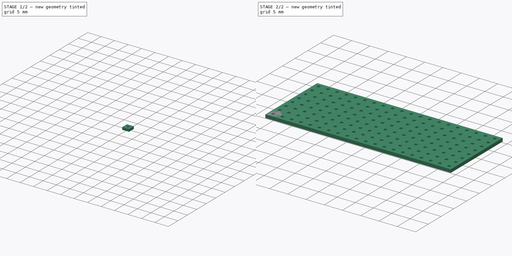
[diagram: build sequence overview — one tinted view per stage of 2, left to right]
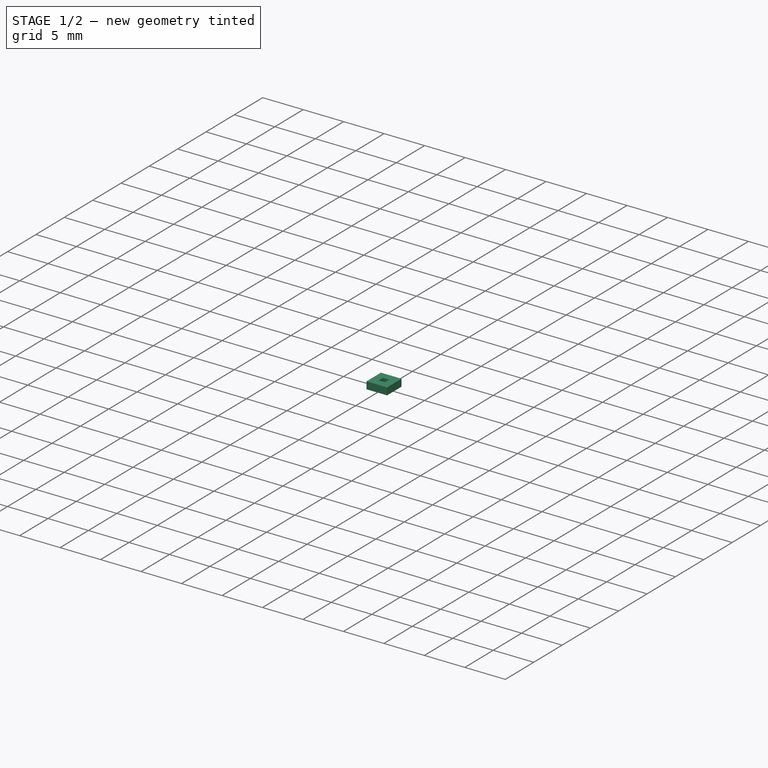
[diagram: stage 1 of 2 — iso view after this stage's code; geometry added in this stage tinted green]
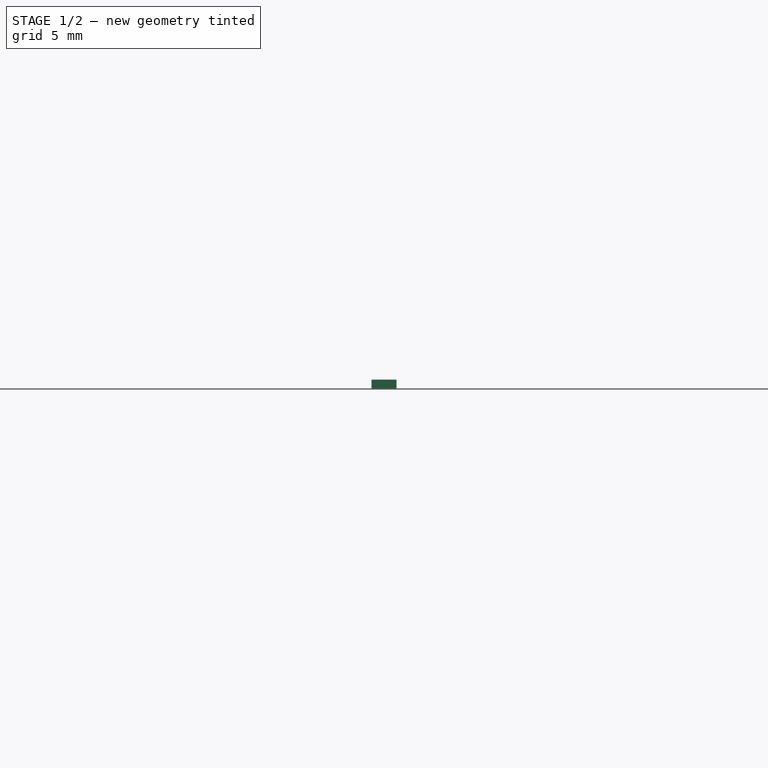
[diagram: stage 1 of 2 — front view after this stage's code; geometry added in this stage tinted green]
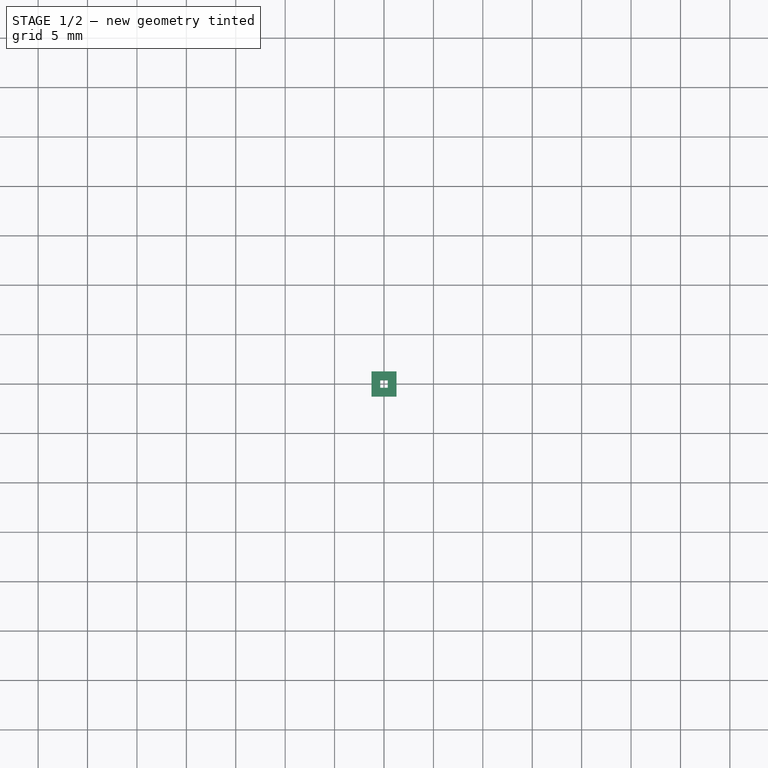
[diagram: stage 1 of 2 — top view after this stage's code; geometry added in this stage tinted green]
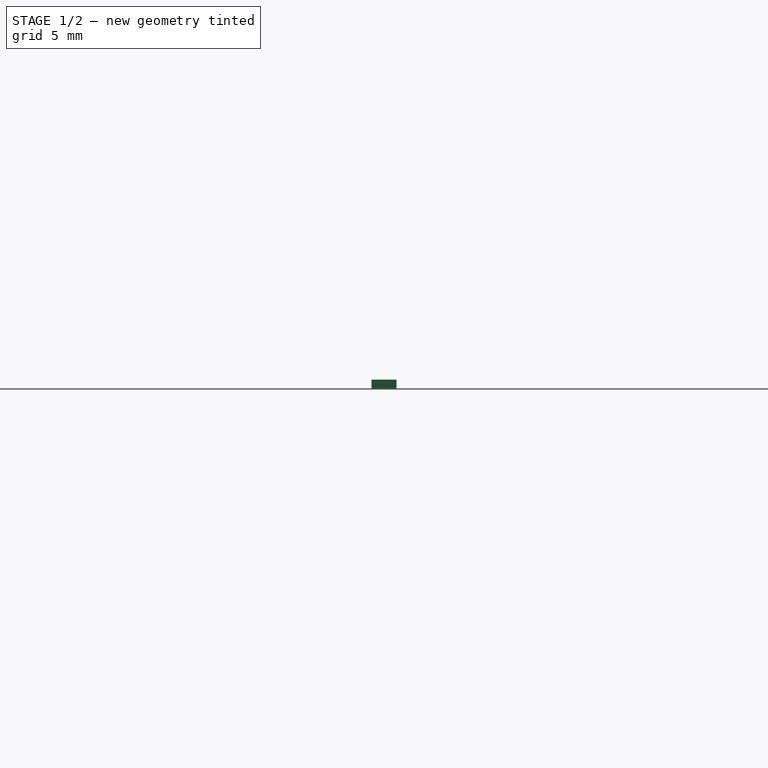
[diagram: stage 1 of 2 — right view after this stage's code; geometry added in this stage tinted green]
FCSTD DOCUMENT  (FreeCAD 1.1R20260113 (Git shallow))
Label: ParametricPerfBoard
License: All rights reserved
LicenseURL: https://en.wikipedia.org/wiki/All_rights_reserved
objects: App::Point×1, App::VarSet×1, Sketcher::SketchObject×1, PartDesign::Pad×1, PartDesign::LinearPattern×1, PartDesign::Body×1
note: 8 computed .brp shape members not serialized (recipe doc carries the construction recipe); baked Part::Feature solids carry a one-line shape summary decoded from their .brp

FEATURE [App::Point] Origin001
  Role = Origin
FEATURE [App::VarSet] VarSet
  Columns = 8
  Rows = 20
FEATURE [Sketcher::SketchObject] Sketch
  ArcFitTolerance = 1e-06
  AttachmentSupport = -> [Origin]
  ExternalTypes = [0]
  FullyConstrained = true
  MakeInternals = false
  MapMode = 5
  sketch-geometry (10):
    g0: LineSegment StartX=-0.381 StartY=-0.381 StartZ=0 EndX=0.381 EndY=-0.381 EndZ=0
    g1: LineSegment StartX=0.381 StartY=-0.381 StartZ=0 EndX=0.381 EndY=0.381 EndZ=0
    g2: LineSegment StartX=0.381 StartY=0.381 StartZ=0 EndX=-0.381 EndY=0.381 EndZ=0
    g3: LineSegment StartX=-0.381 StartY=0.381 StartZ=0 EndX=-0.381 EndY=-0.381 EndZ=0
    g4: GeomPoint [constr] X=0 Y=0 Z=0
    g5: LineSegment StartX=-1.27 StartY=1.27 StartZ=0 EndX=-1.27 EndY=-1.27 EndZ=0
    g6: LineSegment StartX=-1.27 StartY=-1.27 StartZ=0 EndX=1.27 EndY=-1.27 EndZ=0
    g7: LineSegment StartX=1.27 StartY=-1.27 StartZ=0 EndX=1.27 EndY=1.27 EndZ=0
    g8: LineSegment StartX=1.27 StartY=1.27 StartZ=0 EndX=-1.27 EndY=1.27 EndZ=0
    g9: GeomPoint [constr] X=0 Y=0 Z=0
  constraints (24):
    c: Coincident(g0,g1)
    c: Coincident(g1,g2)
    c: Coincident(g2,g3)
    c: Coincident(g3,g0)
    c: Horizontal(g0)
    c: Horizontal(g2)
    c: Vertical(g1)
    c: Vertical(g3)
    c: Symmetric(g2,g0,g4)
    c: Distance(g0,g2) = 0.762
    c: Coincident(g4,g-1)
    c: Equal(g3,g0)
    c: Coincident(g5,g6)
    c: Coincident(g6,g7)
    c: Coincident(g7,g8)
    c: Coincident(g8,g5)
    c: Vertical(g5)
    c: Vertical(g7)
    c: Horizontal(g6)
    c: Horizontal(g8)
    c: Symmetric(g7,g5,g9)
    c: Coincident(g9,g4)
    c: Distance(g7,g-2) = 1.27
    c: Equal(g6,g7)
FEATURE [PartDesign::Pad] Pad
  Direction = (0,0,1)
  Length = 0.889
  Length2 = 10
  Profile = -> Sketch
  ReferenceAxis = -> Sketch [N_Axis]
  Refine = true
  SideType = 0
  Suppressed = false
  Type = 0
  Type2 = 0
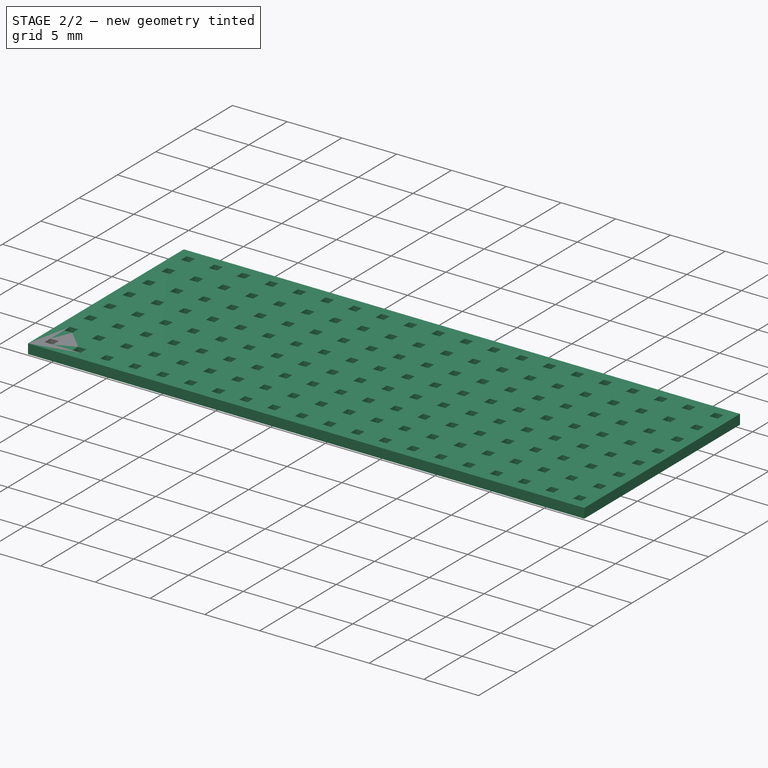
[diagram: stage 2 of 2 — iso view after this stage's code; geometry added in this stage tinted green]
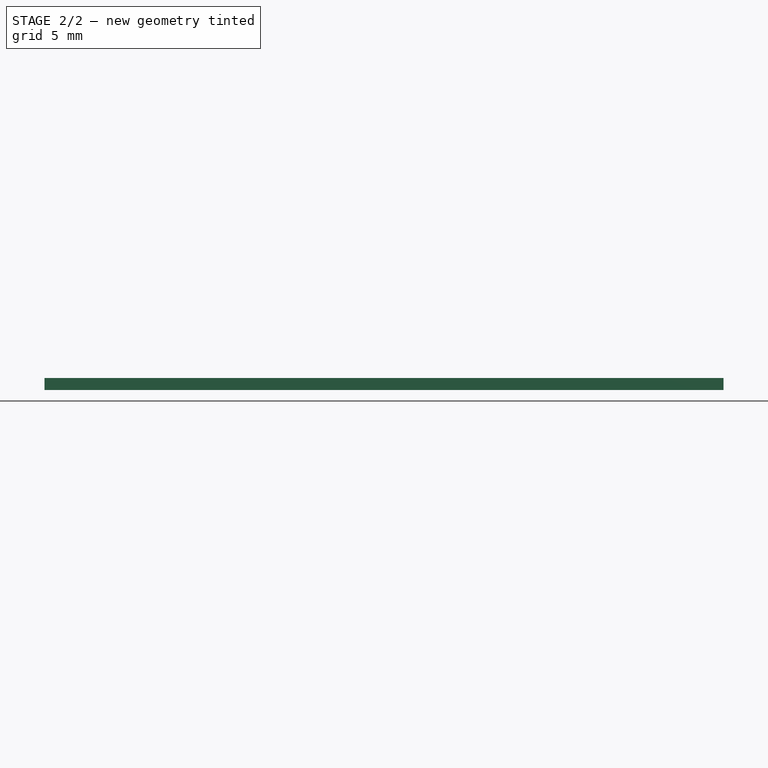
[diagram: stage 2 of 2 — front view after this stage's code; geometry added in this stage tinted green]
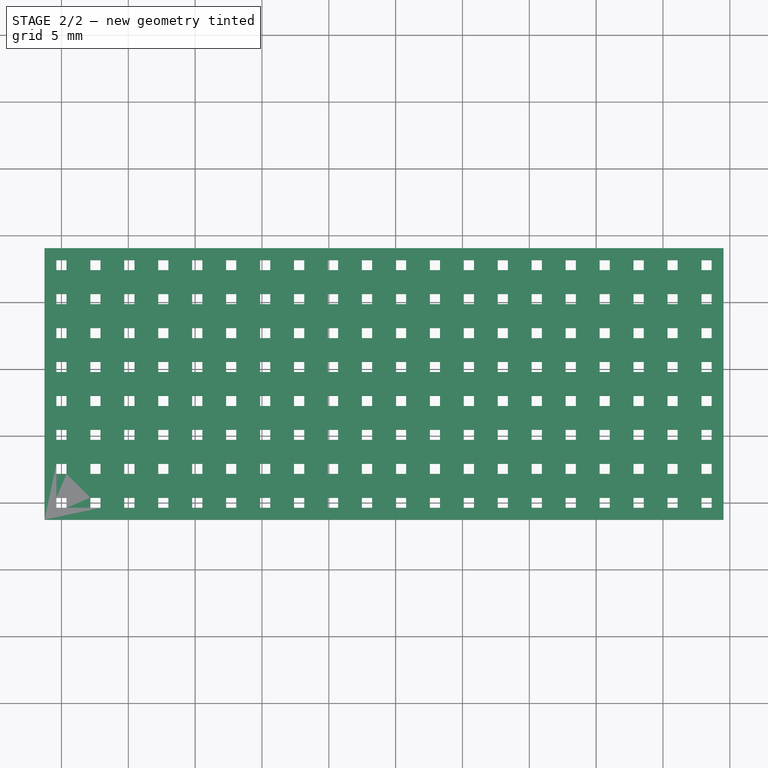
[diagram: stage 2 of 2 — top view after this stage's code; geometry added in this stage tinted green]
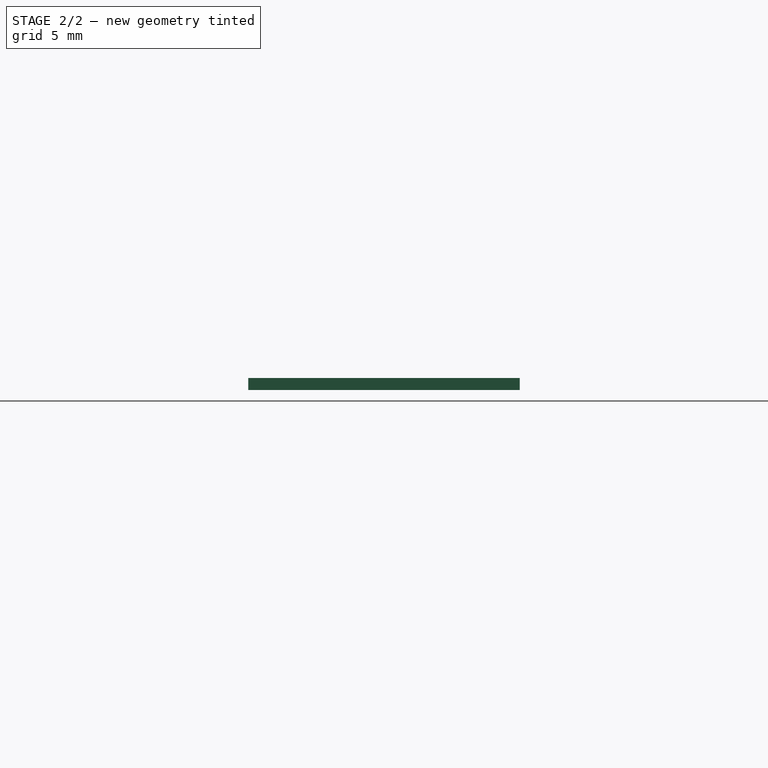
[diagram: stage 2 of 2 — right view after this stage's code; geometry added in this stage tinted green]
FEATURE [PartDesign::LinearPattern] LinearPattern
  BaseFeature = -> Pad
  Direction = -> Sketch [H_Axis]
  Direction2 = -> Sketch [V_Axis]
  Length = 48.26
  Length2 = 17.78
  Mode = 1
  Mode2 = 1
  Occurrences = 20
  Occurrences2 = 8
  Offset = 2.54
  Offset2 = 2.54
  Originals = -> [Pad]
  Refine = true
  Reversed2 = false
  SpacingPattern = [2.54]
  SpacingPattern2 = [2.54]
  Spacings = [-1,-1,-1,-1,-1,-1,-1,-1,-1,-1,-1,-1,-1,-1,-1,-1,-1,-1,-1]
  Spacings2 = [-1,-1,-1,-1,-1,-1,-1]
  Suppressed = false
  TransformMode = 0
  expr: Occurrences = VarSet.Rows
  expr: Occurrences2 = VarSet.Columns
FEATURE [PartDesign::Body] Body
  AllowCompound = true
  Group = -> [VarSet,Sketch,Pad,LinearPattern]
  Origin = -> Origin
  Tip = -> LinearPattern
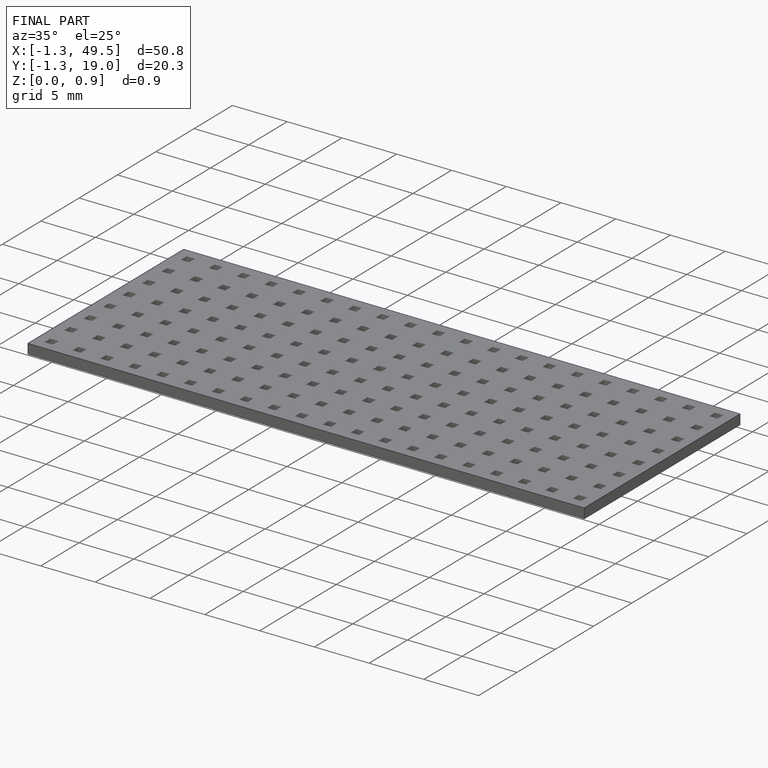
[diagram: finished part — iso view with bounding-box wireframe]
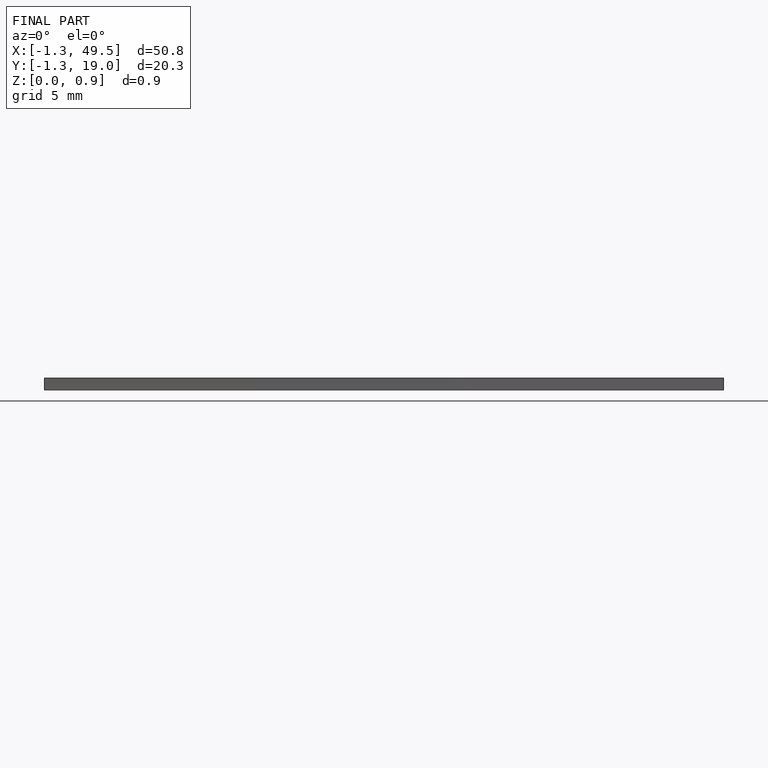
[diagram: finished part — front view with bounding-box wireframe]
